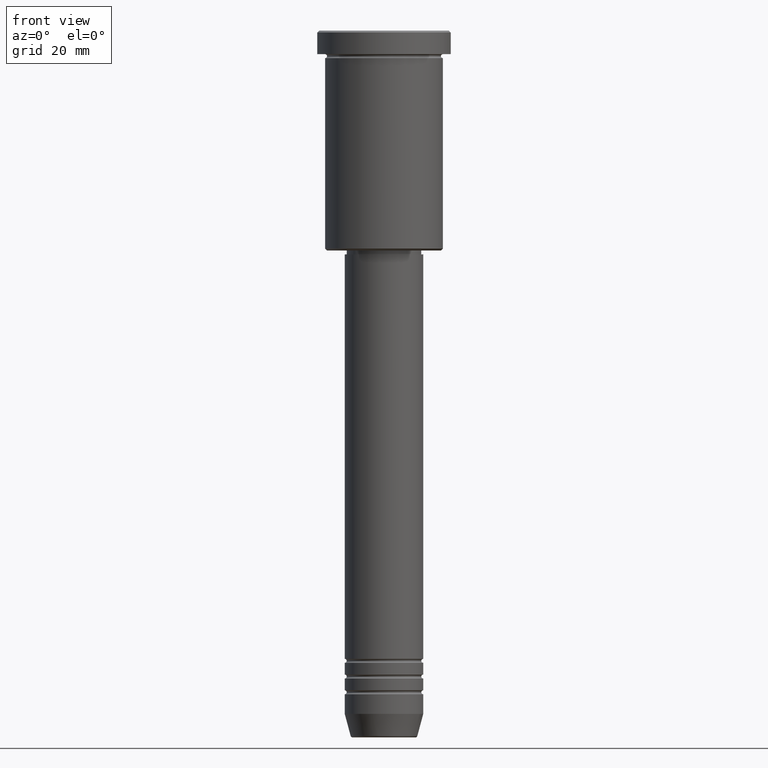
[diagram: clean part render]
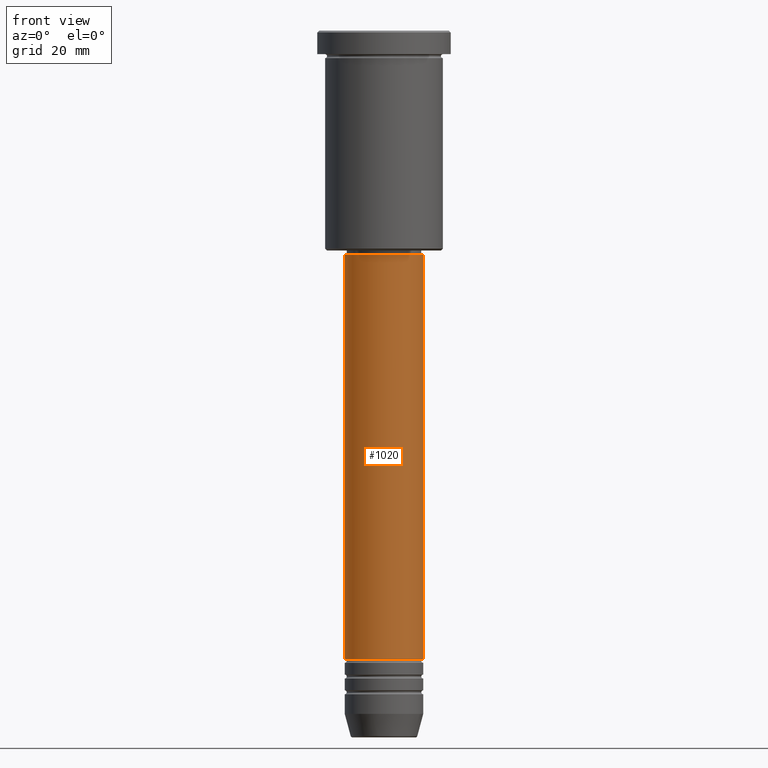
[diagram: same view with one face highlighted and labeled with its STEP entity id]
A machine part, front view. The second image highlights one B-rep face of the part: STEP entity #1020.
In plain terms, the highlighted cylindrical surface (partial cylindrical patch) has radius 10 mm, axis along (-0, -0, 1).
Its self-contained STEP definition (entity closure, byte-faithful):
#11 = CYLINDRICAL_SURFACE ( 'NONE', #487, 10.00000000000000000 ) ;
#66 = EDGE_LOOP ( 'NONE', ( #867, #370, #1170, #349 ) ) ;
#101 = DIRECTION ( 'NONE',  ( -0.000000000000000000, -0.000000000000000000, 1.000000000000000000 ) ) ;
#117 = DIRECTION ( 'NONE',  ( -0.000000000000000000, -0.000000000000000000, 1.000000000000000000 ) ) ;
#156 = EDGE_CURVE ( 'NONE', #684, #588, #1030, .T. ) ;
#169 = VECTOR ( 'NONE', #1176, 1000.000000000000000 ) ;
#262 = DIRECTION ( 'NONE',  ( -0.000000000000000000, -0.000000000000000000, 1.000000000000000000 ) ) ;
#280 = AXIS2_PLACEMENT_3D ( 'NONE', #347, #262, #997 ) ;
#320 = VERTEX_POINT ( 'NONE', #688 ) ;
#347 = CARTESIAN_POINT ( 'NONE',  ( 0.000000000000000000, 0.000000000000000000, -160.0000000000000000 ) ) ;
#349 = ORIENTED_EDGE ( 'NONE', *, *, #1164, .F. ) ;
#370 = ORIENTED_EDGE ( 'NONE', *, *, #505, .T. ) ;
#372 = DIRECTION ( 'NONE',  ( 1.000000000000000000, 0.000000000000000000, 0.000000000000000000 ) ) ;
#384 = EDGE_CURVE ( 'NONE', #685, #320, #918, .T. ) ;
#432 = CARTESIAN_POINT ( 'NONE',  ( 10.00000000000000000, 0.000000000000000000, 0.000000000000000000 ) ) ;
#487 = AXIS2_PLACEMENT_3D ( 'NONE', #651, #101, #372 ) ;
#494 = CARTESIAN_POINT ( 'NONE',  ( -10.00000000000000178, 1.224646799147353454E-15, -160.0000000000000000 ) ) ;
#505 = EDGE_CURVE ( 'NONE', #684, #685, #825, .T. ) ;
#547 = VECTOR ( 'NONE', #117, 1000.000000000000000 ) ;
#587 = DIRECTION ( 'NONE',  ( -0.000000000000000000, -0.000000000000000000, 1.000000000000000000 ) ) ;
#588 = VERTEX_POINT ( 'NONE', #937 ) ;
#651 = CARTESIAN_POINT ( 'NONE',  ( 0.000000000000000000, 0.000000000000000000, 0.000000000000000000 ) ) ;
#675 = AXIS2_PLACEMENT_3D ( 'NONE', #778, #587, #1143 ) ;
#684 = VERTEX_POINT ( 'NONE', #494 ) ;
#685 = VERTEX_POINT ( 'NONE', #1046 ) ;
#688 = CARTESIAN_POINT ( 'NONE',  ( 9.999999999999998224, 0.000000000000000000, -57.00000000000001421 ) ) ;
#778 = CARTESIAN_POINT ( 'NONE',  ( 0.000000000000000000, 0.000000000000000000, -57.00000000000001421 ) ) ;
#825 = CIRCLE ( 'NONE', #280, 10.00000000000000178 ) ;
#867 = ORIENTED_EDGE ( 'NONE', *, *, #156, .F. ) ;
#906 = CIRCLE ( 'NONE', #675, 9.999999999999998224 ) ;
#918 = LINE ( 'NONE', #432, #169 ) ;
#937 = CARTESIAN_POINT ( 'NONE',  ( -9.999999999999998224, 1.224646799147353256E-15, -57.00000000000001421 ) ) ;
#997 = DIRECTION ( 'NONE',  ( 1.000000000000000000, 0.000000000000000000, 0.000000000000000000 ) ) ;
#1019 = CARTESIAN_POINT ( 'NONE',  ( -10.00000000000000000, 1.224646799147353256E-15, 0.000000000000000000 ) ) ;
#1020 = ADVANCED_FACE ( 'NONE', ( #1021 ), #11, .T. ) ;
#1021 = FACE_OUTER_BOUND ( 'NONE', #66, .T. ) ;
#1030 = LINE ( 'NONE', #1019, #547 ) ;
#1046 = CARTESIAN_POINT ( 'NONE',  ( 10.00000000000000178, 0.000000000000000000, -160.0000000000000000 ) ) ;
#1143 = DIRECTION ( 'NONE',  ( 1.000000000000000000, 0.000000000000000000, 0.000000000000000000 ) ) ;
#1164 = EDGE_CURVE ( 'NONE', #588, #320, #906, .T. ) ;
#1170 = ORIENTED_EDGE ( 'NONE', *, *, #384, .T. ) ;
#1176 = DIRECTION ( 'NONE',  ( -0.000000000000000000, -0.000000000000000000, 1.000000000000000000 ) ) ;